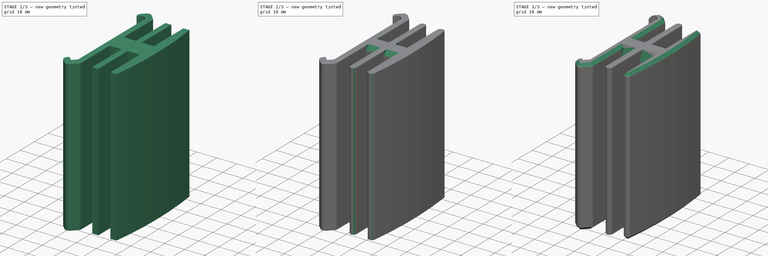
[diagram: build sequence overview — one tinted view per stage of 3, left to right]
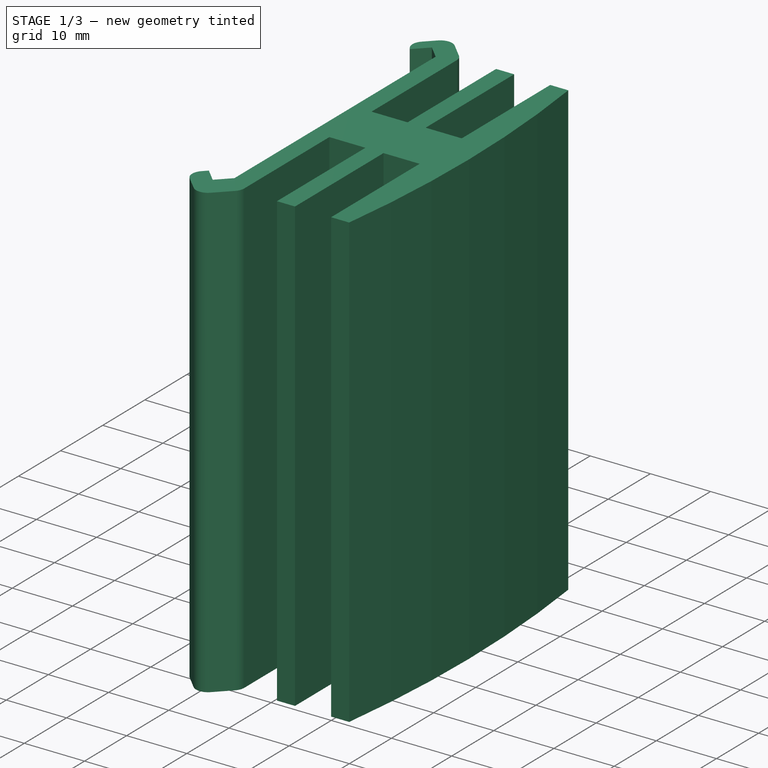
[diagram: stage 1 of 3 — iso view after this stage's code; geometry added in this stage tinted green]
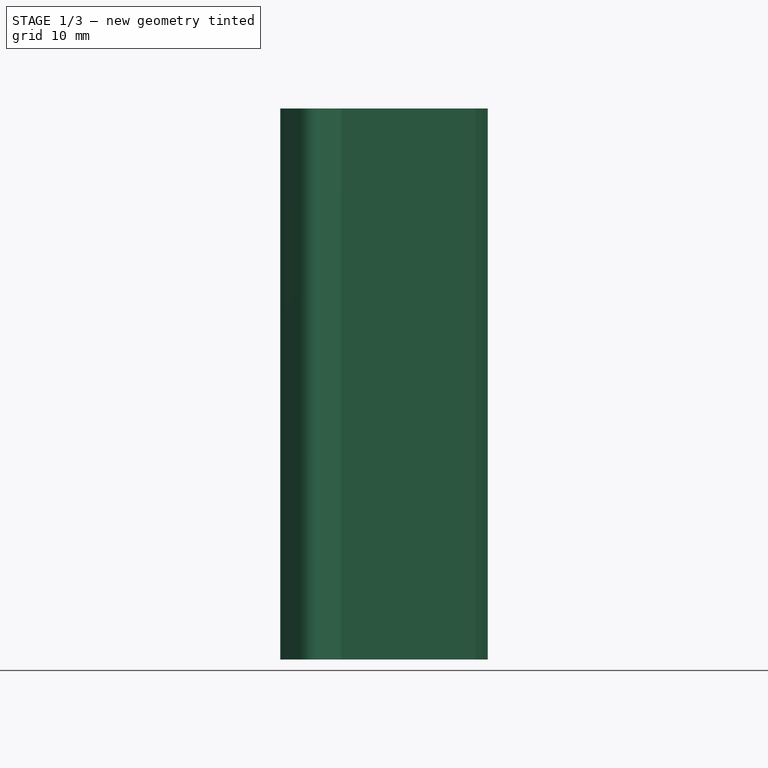
[diagram: stage 1 of 3 — front view after this stage's code; geometry added in this stage tinted green]
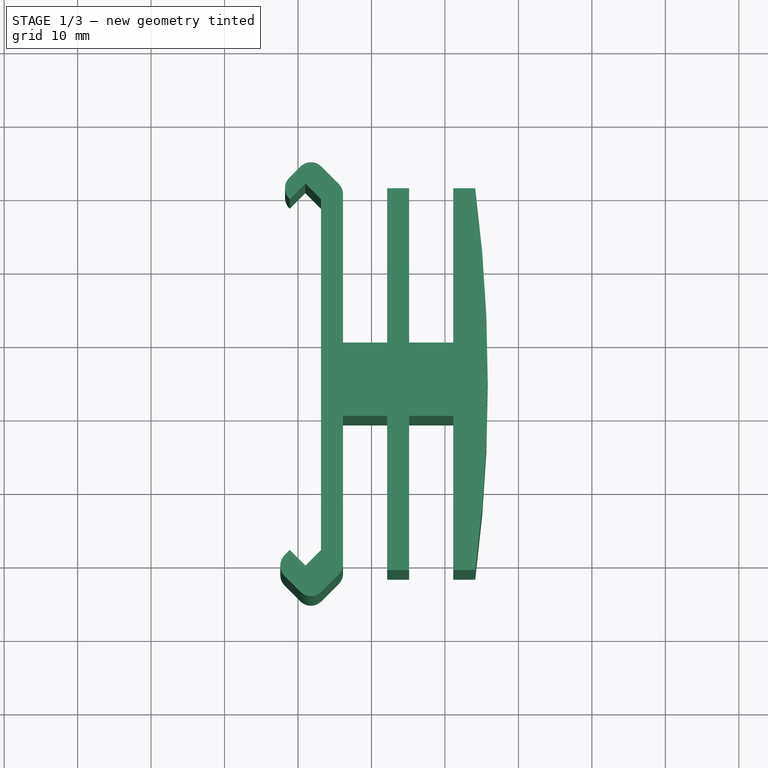
[diagram: stage 1 of 3 — top view after this stage's code; geometry added in this stage tinted green]
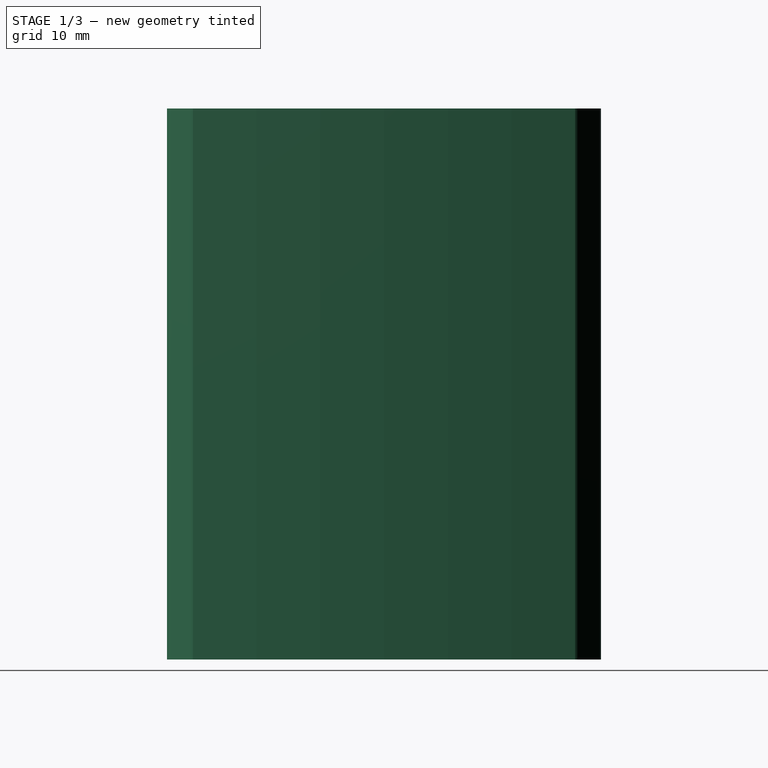
[diagram: stage 1 of 3 — right view after this stage's code; geometry added in this stage tinted green]
FCSTD DOCUMENT  (FreeCAD 0.17R11141 (Git))
Label: slider-guider
License: All rights reserved
LicenseURL: http://en.wikipedia.org/wiki/All_rights_reserved
objects: PartDesign::Chamfer×3, PartDesign::Fillet×2, Sketcher::SketchObject×1, PartDesign::Pad×1, PartDesign::Body×1
note: 9 computed .brp shape members not serialized (recipe doc carries the construction recipe); baked Part::Feature solids carry a one-line shape summary decoded from their .brp

FEATURE [Sketcher::SketchObject] Sketch
  MapMode = 5
  Support = -> [XY_Plane]
  sketch-geometry (33):
    g0: LineSegment [constr] StartX=0 StartY=0 StartZ=0 EndX=2 EndY=0 EndZ=0
    g1: LineSegment [constr] StartX=2 StartY=0 StartZ=0 EndX=2 EndY=50 EndZ=0
    g2: LineSegment [constr] StartX=2 StartY=50 StartZ=0 EndX=0 EndY=50 EndZ=0
    g3: LineSegment [constr] StartX=0 StartY=50 StartZ=0 EndX=0 EndY=0 EndZ=0
    g4: LineSegment StartX=-1.12132 StartY=48.8787 StartZ=0 EndX=1 EndY=51 EndZ=0
    g5: LineSegment StartX=1 StartY=51 StartZ=0 EndX=3.12132 EndY=48.8787 EndZ=0
    g6: LineSegment StartX=3.12132 StartY=48.8787 StartZ=0 EndX=3.12132 EndY=1.12132 EndZ=0
    g7: LineSegment StartX=3.12132 StartY=1.12132 StartZ=0 EndX=1 EndY=-1 EndZ=0
    g8: LineSegment StartX=1 StartY=-1 StartZ=0 EndX=-1.12132 EndY=1.12132 EndZ=0
    g9: LineSegment StartX=-1.12132 StartY=1.12132 StartZ=0 EndX=-3.24264 EndY=-1 EndZ=0
    g10: LineSegment StartX=-3.24264 StartY=-1 StartZ=0 EndX=1.75736 EndY=-6 EndZ=0
    g11: LineSegment StartX=1.75736 StartY=-6 StartZ=0 EndX=6.12132 EndY=-1.63604 EndZ=0
    g12: LineSegment StartX=6.12132 StartY=-1.63604 StartZ=0 EndX=6.12132 EndY=19.364 EndZ=0
    g13: LineSegment StartX=6.12132 StartY=19.364 StartZ=0 EndX=12.1213 EndY=19.364 EndZ=0
    g14: LineSegment StartX=12.1213 StartY=19.364 StartZ=0 EndX=12.1213 EndY=-1.63604 EndZ=0
    g15: LineSegment StartX=12.1213 StartY=-1.63604 StartZ=0 EndX=15.1213 EndY=-1.63604 EndZ=0
    g16: LineSegment StartX=15.1213 StartY=-1.63604 StartZ=0 EndX=15.1213 EndY=19.364 EndZ=0
    g17: LineSegment StartX=15.1213 StartY=19.364 StartZ=0 EndX=21.1213 EndY=19.364 EndZ=0
    g18: LineSegment StartX=21.1213 StartY=19.364 StartZ=0 EndX=21.1213 EndY=-1.63604 EndZ=0
    g19: LineSegment StartX=21.1213 StartY=-1.63604 StartZ=0 EndX=24.1213 EndY=-1.63604 EndZ=0
    g20: LineSegment [constr] StartX=24.1213 StartY=-1.63604 StartZ=0 EndX=24.1213 EndY=50.364 EndZ=0
    g21: LineSegment StartX=-1.12132 StartY=48.8787 StartZ=0 EndX=-2.6066 EndY=50.364 EndZ=0
    g22: LineSegment StartX=-2.6066 StartY=50.364 StartZ=0 EndX=1.75736 EndY=54.7279 EndZ=0
    g23: LineSegment StartX=1.75736 StartY=54.7279 StartZ=0 EndX=6.12132 EndY=50.364 EndZ=0
    g24: LineSegment StartX=6.12132 StartY=50.364 StartZ=0 EndX=6.12132 EndY=29.364 EndZ=0
    g25: LineSegment StartX=6.12132 StartY=29.364 StartZ=0 EndX=12.1213 EndY=29.364 EndZ=0
    g26: LineSegment StartX=12.1213 StartY=29.364 StartZ=0 EndX=12.1213 EndY=50.364 EndZ=0
    g27: LineSegment StartX=12.1213 StartY=50.364 StartZ=0 EndX=15.1213 EndY=50.364 EndZ=0
    g28: LineSegment StartX=15.1213 StartY=50.364 StartZ=0 EndX=15.1213 EndY=29.364 EndZ=0
    g29: LineSegment StartX=15.1213 StartY=29.364 StartZ=0 EndX=21.1213 EndY=29.364 EndZ=0
    g30: LineSegment StartX=21.1213 StartY=29.364 StartZ=0 EndX=21.1213 EndY=50.364 EndZ=0
    g31: LineSegment StartX=21.1213 StartY=50.364 StartZ=0 EndX=24.1213 EndY=50.364 EndZ=0
    g32: ArcOfCircle CenterX=-174.181 CenterY=24.364 CenterZ=0 NormalX=0 NormalY=0 NormalZ=1 Radius=200 StartAngle=6.15282 EndAngle=6.41355
  constraints (99):
    c: Coincident(g0,g1)
    c: Coincident(g1,g2)
    c: Coincident(g2,g3)
    c: Coincident(g3,g0)
    c: Horizontal(g0)
    c: Horizontal(g2)
    c: Vertical(g1)
    c: Vertical(g3)
    c: Coincident(g0,g-1)
    c: DistanceY(g1,g1) = 50
    c: DistanceX(g0,g0) = 2
    c: PointOnObject(g2,g4)
    c: Coincident(g4,g5)
    c: Coincident(g5,g6)
    c: Vertical(g6)
    c: Coincident(g6,g7)
    c: Coincident(g7,g8)
    c: Coincident(g8,g9)
    c: Coincident(g9,g10)
    c: Coincident(g10,g11)
    c: Coincident(g11,g12)
    c: Vertical(g12)
    c: Coincident(g12,g13)
    c: Horizontal(g13)
    c: Coincident(g13,g14)
    c: Vertical(g14)
    c: Coincident(g14,g15)
    c: Horizontal(g15)
    c: Coincident(g15,g16)
    c: Vertical(g16)
    c: Coincident(g16,g17)
    c: Horizontal(g17)
    c: Coincident(g17,g18)
    c: Vertical(g18)
    c: Coincident(g18,g19)
    c: Horizontal(g19)
    c: Coincident(g19,g20)
    c: Vertical(g20)
    c: PointOnObject(g0,g7)
    c: Perpendicular(g8,g7)
    c: Angle(g7,g1) = 0.785398
    c: Perpendicular(g8,g9)
    c: Perpendicular(g10,g9)
    c: Perpendicular(g11,g10)
    c: Distance(g9) = 3
    c: PointOnObject(g-1,g8)
    c: Distance(g8) = 3
    c: Equal(g8,g7)
    c: DistanceY(g10,g7) = 5
    c: Equal(g13,g17)
    c: Equal(g12,g14)
    c: Equal(g14,g16)
    c: Equal(g16,g18)
    c: DistanceX(g13,g13) = 6
    c: DistanceX(g6,g11) = 3
    c: Equal(g15,g19)
    c: DistanceX(g15,g15) = 3
    c: PointOnObject(g1,g5)
    c: Perpendicular(g5,g4)
    c: Parallel(g4,g7)
    c: Equal(g4,g5)
    c: Equal(g5,g7)
    c: Coincident(g4,g21)
    c: Coincident(g21,g22)
    c: Coincident(g22,g23)
    c: Coincident(g23,g24)
    c: Vertical(g24)
    c: Coincident(g24,g25)
    c: Horizontal(g25)
    c: Coincident(g25,g26)
    c: Vertical(g26)
    c: Coincident(g26,g27)
    c: Horizontal(g27)
    c: Coincident(g27,g28)
    c: Vertical(g28)
    c: Coincident(g28,g29)
    c: Horizontal(g29)
    c: Coincident(g29,g30)
    c: Vertical(g30)
    c: Coincident(g30,g31)
    c: Coincident(g31,g20)
    c: Horizontal(g31)
    c: Perpendicular(g22,g21)
    c: Perpendicular(g23,g22)
    c: PointOnObject(g12,g24)
    c: Equal(g25,g29)
    c: Equal(g29,g17)
    c: Equal(g26,g30)
    c: Equal(g30,g18)
    c: PointOnObject(g28,g25)
    c: PointOnObject(g17,g30)
    c: DistanceY(g17,g29) = 10
    c: Equal(g24,g26)
    c: Equal(g11,g23)
    c: Equal(g23,g22)
    c: Perpendicular(g4,g21)
    c: Coincident(g32,g20)
    c: Coincident(g32,g19)
    c: Radius(g32) = 200
FEATURE [PartDesign::Pad] Pad
  Length = 75
  Length2 = 100
  Profile = -> Sketch
  Type = 0
FEATURE [PartDesign::Fillet] Fillet
  Base = -> Pad [Edge20,Edge23,Edge17,Edge77,Edge74,Edge80]
  BaseFeature = -> Pad
  Radius = 2
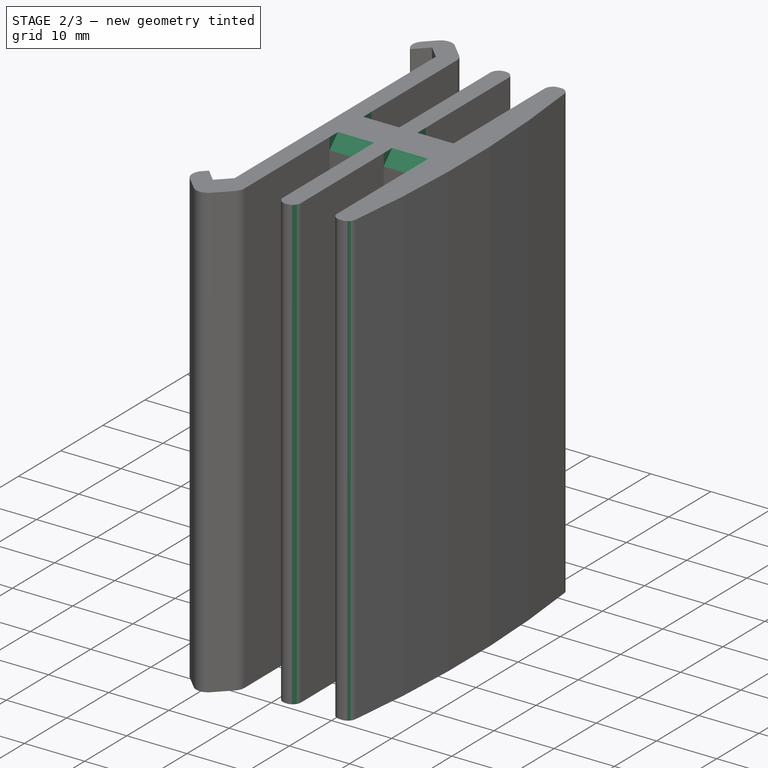
[diagram: stage 2 of 3 — iso view after this stage's code; geometry added in this stage tinted green]
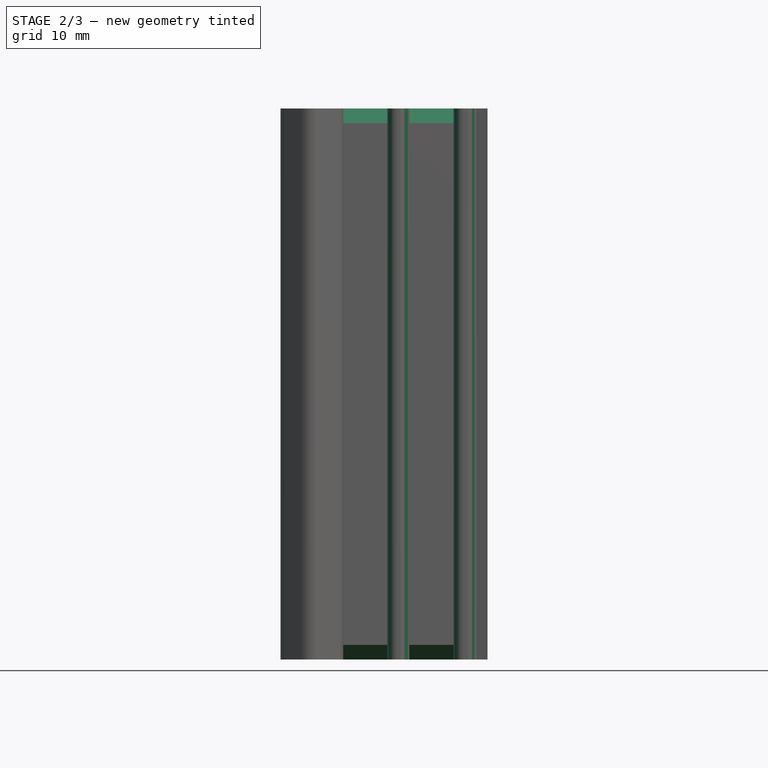
[diagram: stage 2 of 3 — front view after this stage's code; geometry added in this stage tinted green]
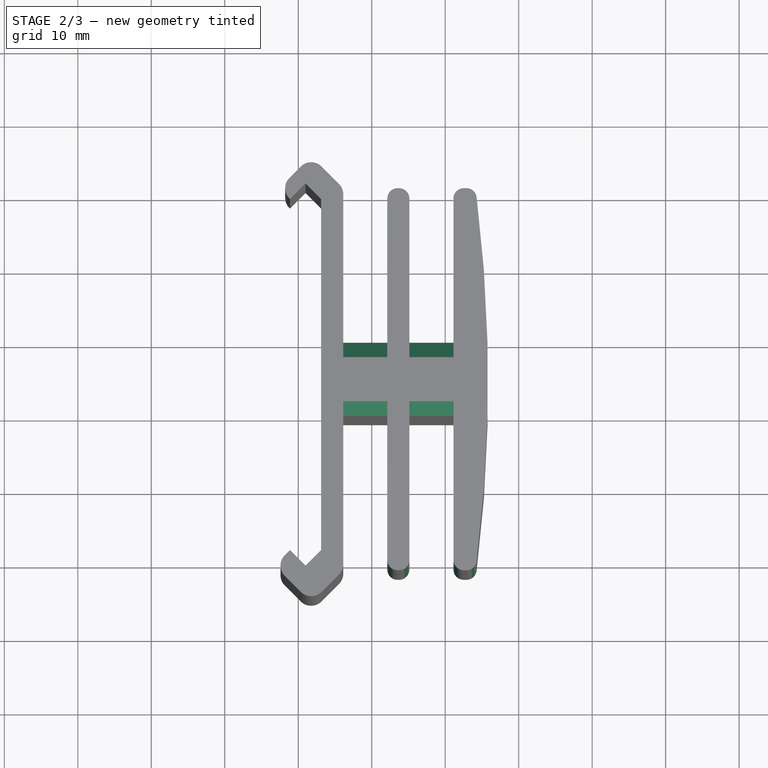
[diagram: stage 2 of 3 — top view after this stage's code; geometry added in this stage tinted green]
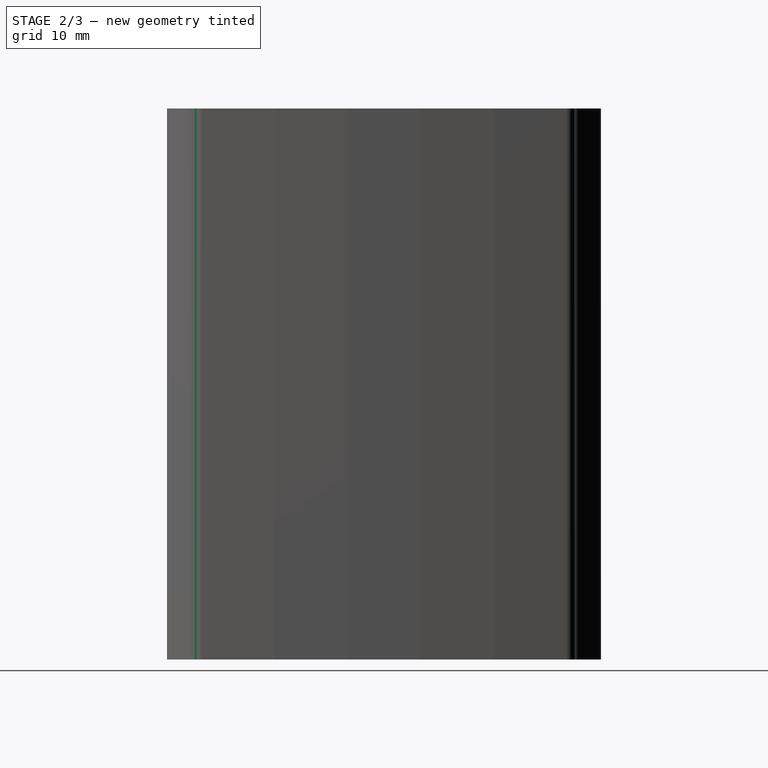
[diagram: stage 2 of 3 — right view after this stage's code; geometry added in this stage tinted green]
FEATURE [PartDesign::Fillet] Fillet001
  Base = -> Fillet [Edge95,Edge93,Edge87,Edge85,Edge97,Edge99,Edge100,Edge98]
  BaseFeature = -> Fillet
  Radius = 1.4
FEATURE [PartDesign::Chamfer] Chamfer
  Base = -> Fillet001 [Edge103,Edge63,Edge49,Edge126,Edge30,Edge42,Edge3,Edge10]
  BaseFeature = -> Fillet001
  Size = 2
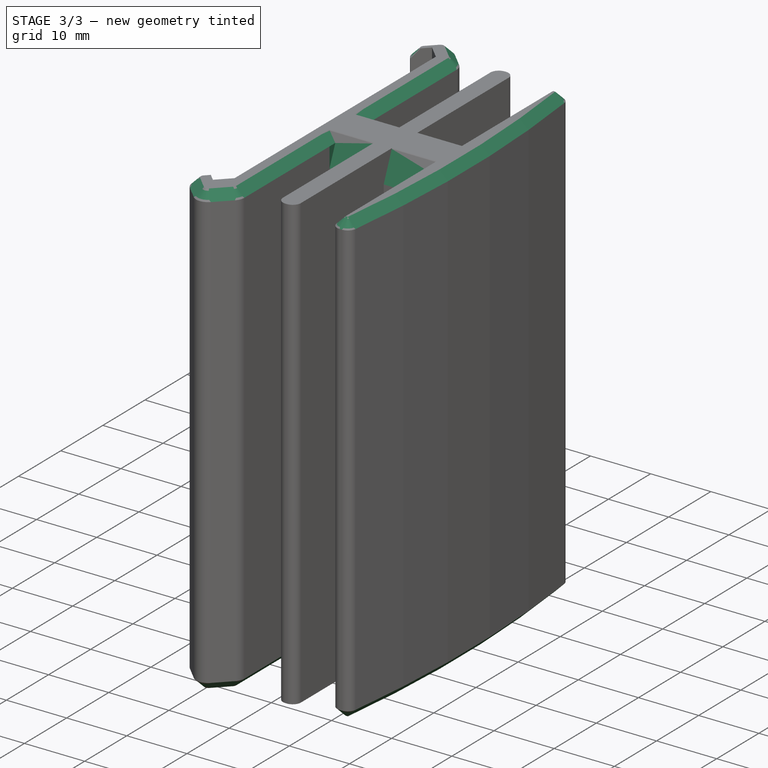
[diagram: stage 3 of 3 — iso view after this stage's code; geometry added in this stage tinted green]
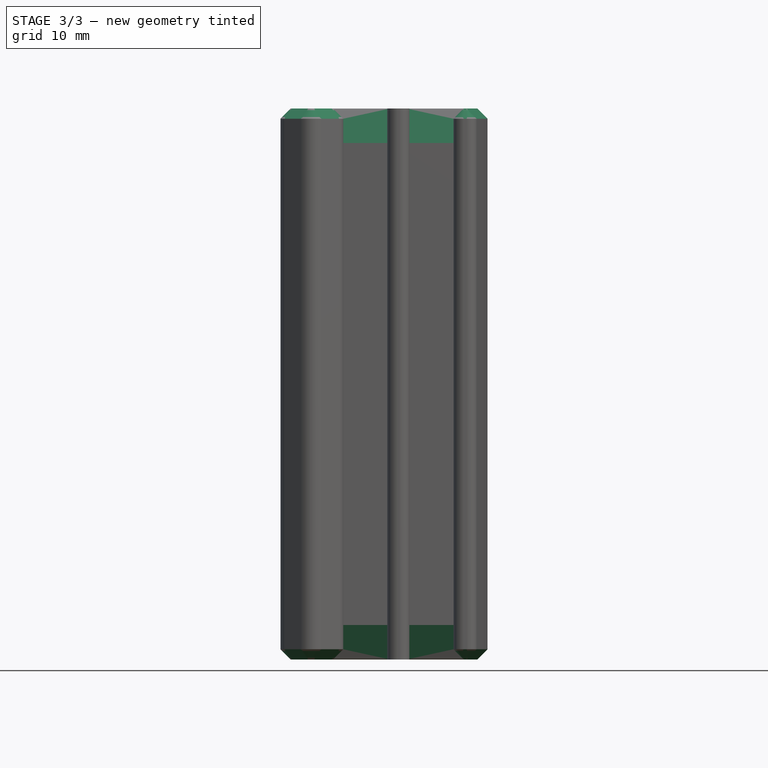
[diagram: stage 3 of 3 — front view after this stage's code; geometry added in this stage tinted green]
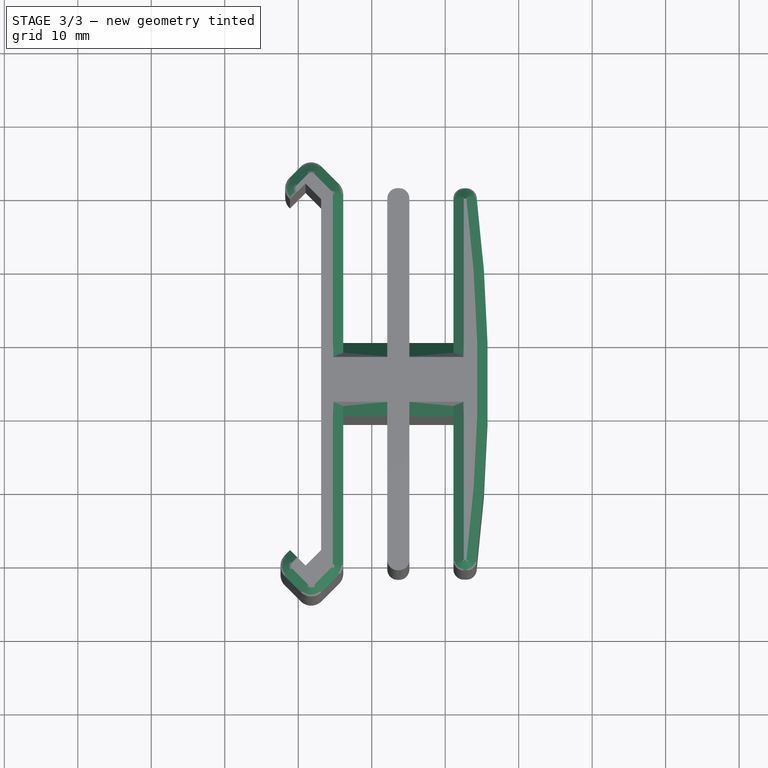
[diagram: stage 3 of 3 — top view after this stage's code; geometry added in this stage tinted green]
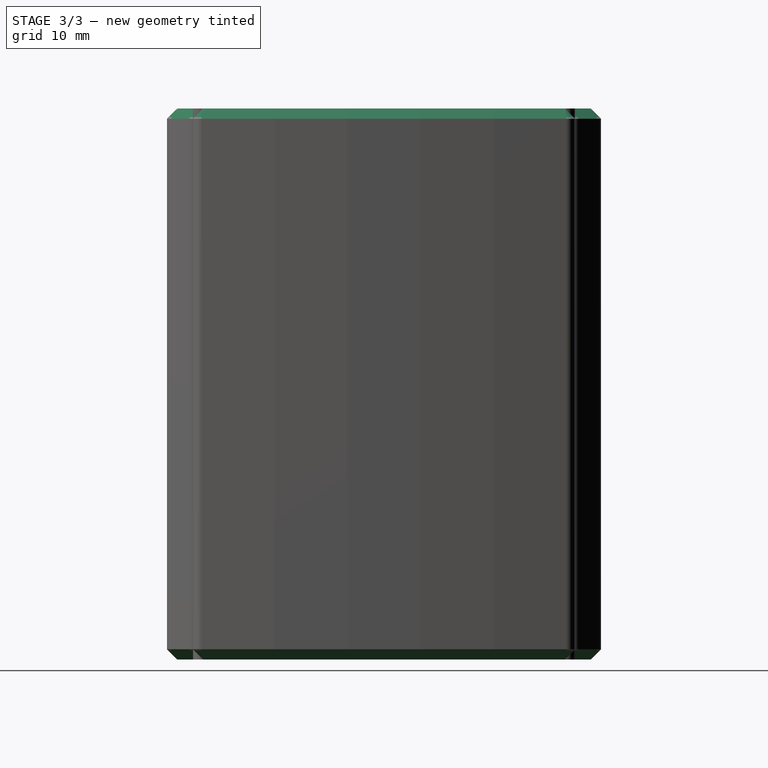
[diagram: stage 3 of 3 — right view after this stage's code; geometry added in this stage tinted green]
FEATURE [PartDesign::Chamfer] Chamfer001
  Base = -> Chamfer [Edge82,Edge57,Edge110,Edge144,Edge166,Edge165,Edge159,Edge164]
  BaseFeature = -> Chamfer
  Size = 2.7
FEATURE [PartDesign::Chamfer] Chamfer002
  Base = -> Chamfer001 [Edge65,Edge41,Edge25,Edge36,Edge83,Edge72,Edge88,Edge112]
  BaseFeature = -> Chamfer001
  Size = 1.4
FEATURE [PartDesign::Body] Body
  Group = -> [Sketch,Pad,Fillet,Fillet001,Chamfer,Chamfer001,Chamfer002]
  Origin = -> BodyOrigin
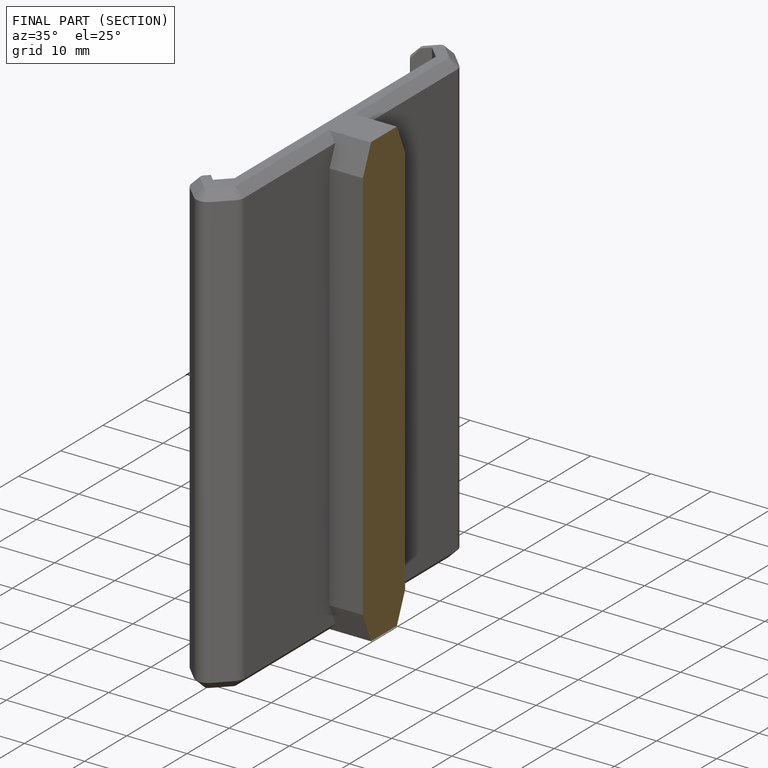
[diagram: finished part — half-section view (interior)]
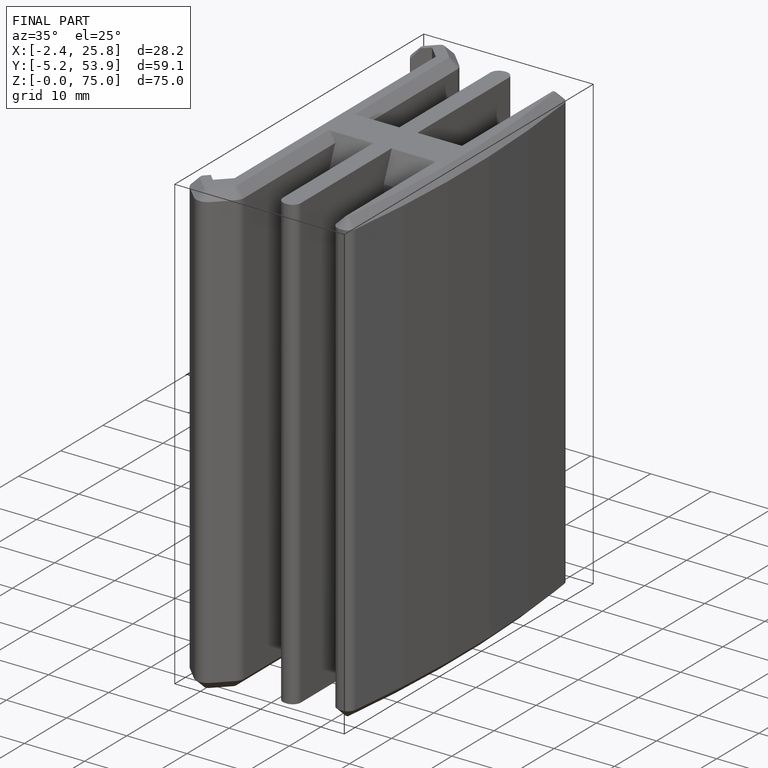
[diagram: finished part — iso view with bounding-box wireframe]
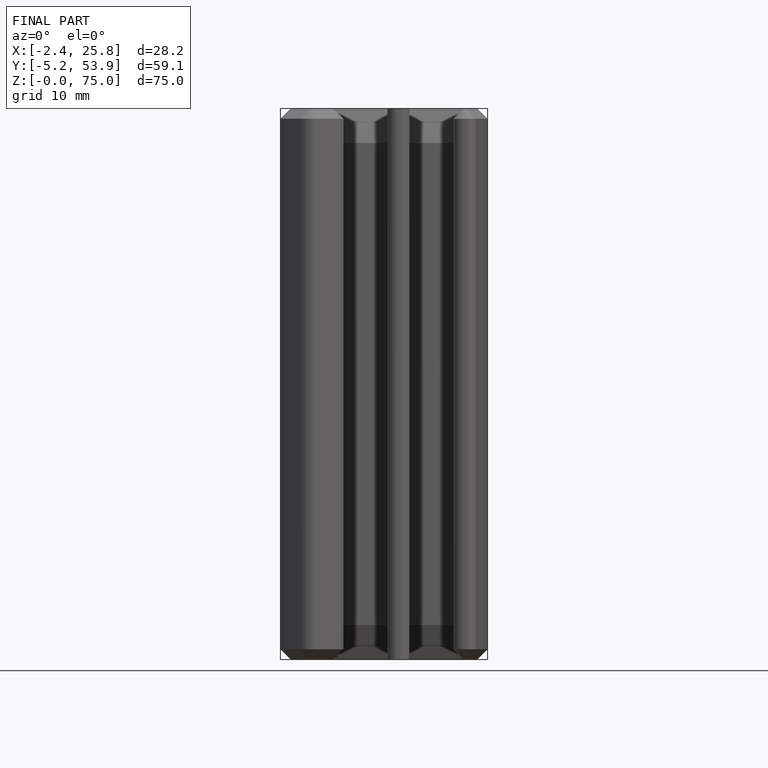
[diagram: finished part — front view with bounding-box wireframe]
